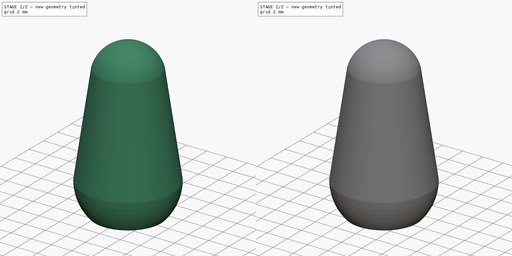
[diagram: build sequence overview — one tinted view per stage of 2, left to right]
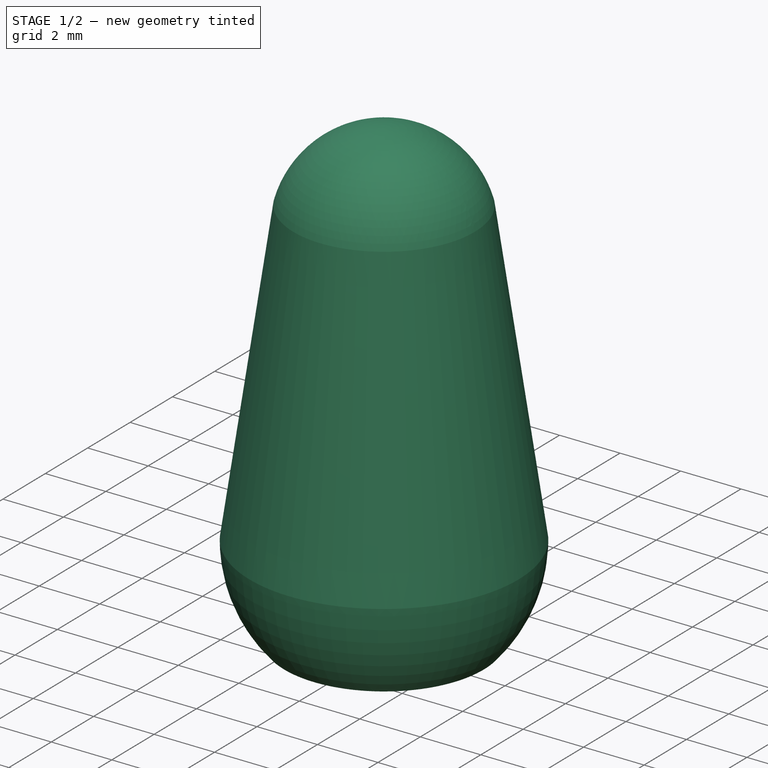
[diagram: stage 1 of 2 — iso view after this stage's code; geometry added in this stage tinted green]
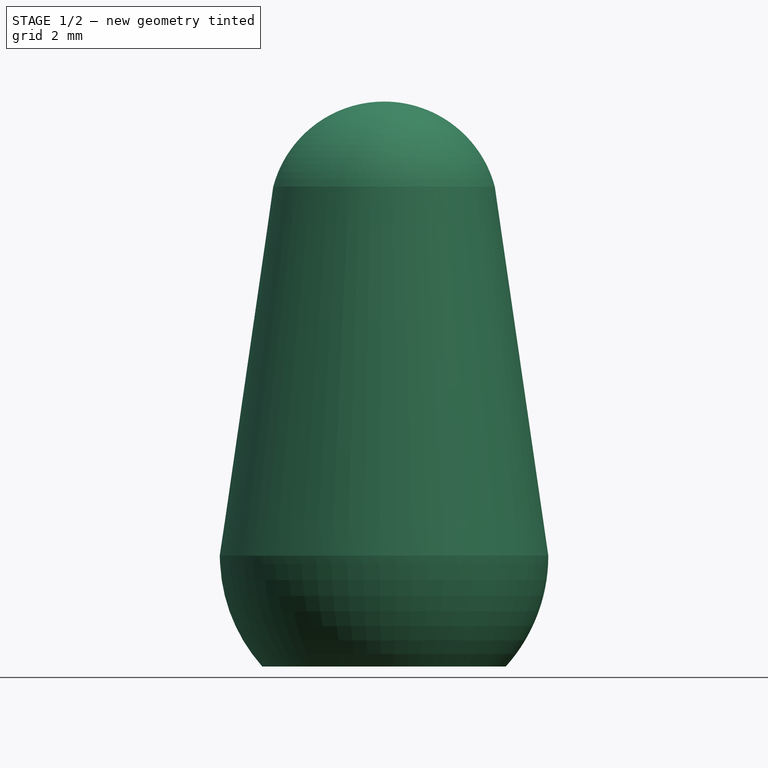
[diagram: stage 1 of 2 — front view after this stage's code; geometry added in this stage tinted green]
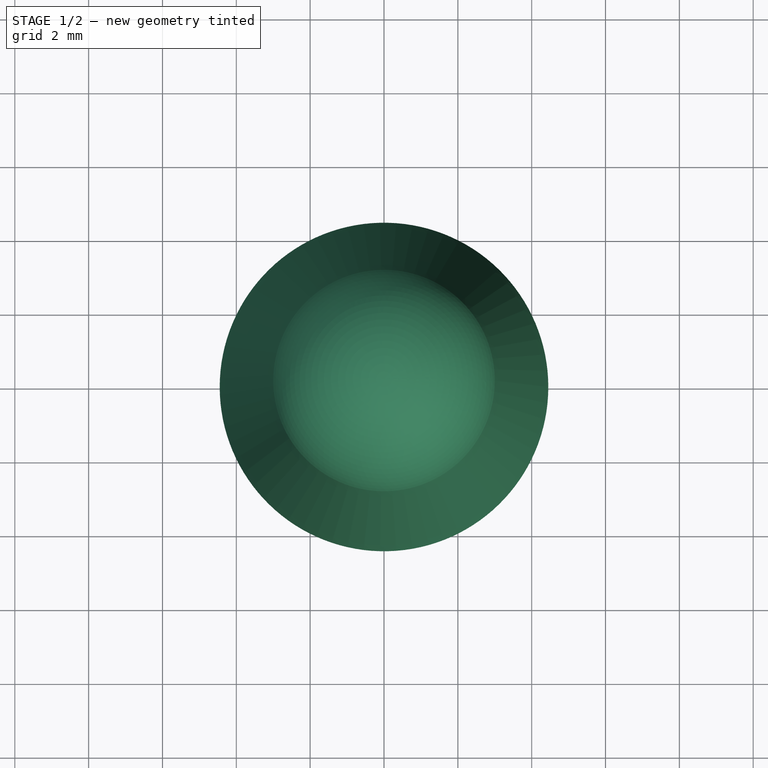
[diagram: stage 1 of 2 — top view after this stage's code; geometry added in this stage tinted green]
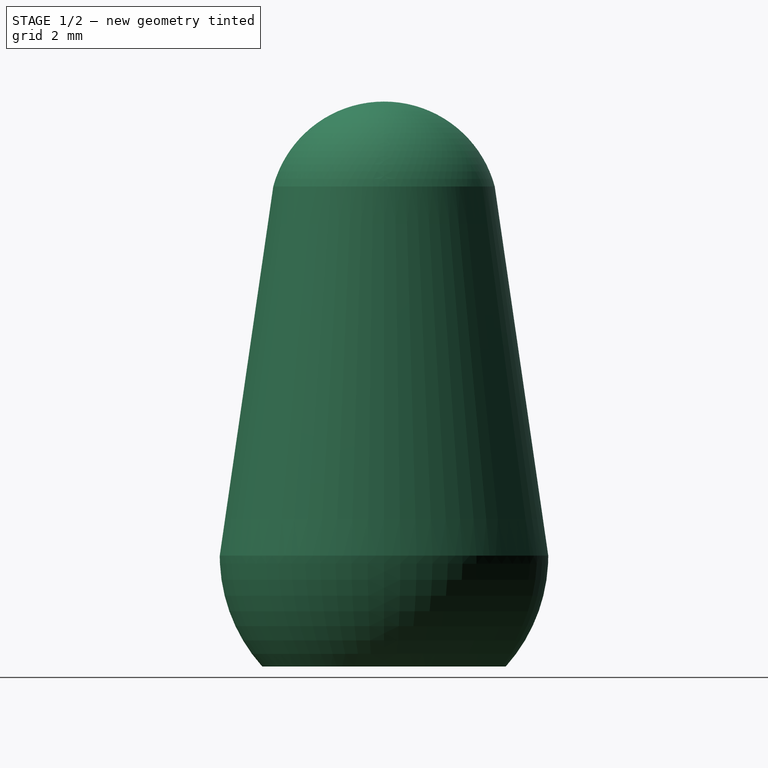
[diagram: stage 1 of 2 — right view after this stage's code; geometry added in this stage tinted green]
FCSTD DOCUMENT  (FreeCAD 0.19R24267 +99 (Git))
Label: tip
License: All rights reserved
LicenseURL: http://en.wikipedia.org/wiki/All_rights_reserved
objects: Sketcher::SketchObject×3, PartDesign::Pocket×2, PartDesign::Revolution×1, PartDesign::Body×1
note: 10 computed .brp shape members not serialized (recipe doc carries the construction recipe); baked Part::Feature solids carry a one-line shape summary decoded from their .brp

FEATURE [Sketcher::SketchObject] Sketch
  FullyConstrained = true
  MapMode = 5
  Placement = pos=(0,0,0) rot=(1,0,0;1.5708rad)
  Support = -> [XZ_Plane]
  sketch-geometry (8):
    g0: LineSegment StartX=-3.3 StartY=0 StartZ=0 EndX=3.3 EndY=-9e-16 EndZ=0
    g1: LineSegment StartX=-4.45 StartY=3 StartZ=0 EndX=4.45 EndY=3 EndZ=0
    g2: LineSegment StartX=0 StartY=0 StartZ=0 EndX=3.3 EndY=-9e-16 EndZ=0
    g3: ArcOfCircle CenterX=-0.0380435 CenterY=3 CenterZ=0 NormalX=0 NormalY=0 NormalZ=1 AngleXU=0 Radius=4.48804 StartAngle=5.55107 EndAngle=6.28319
    g4: LineSegment StartX=4.45 StartY=3 StartZ=0 EndX=3 EndY=13 EndZ=0
    g5: LineSegment StartX=-3 StartY=13 StartZ=0 EndX=3 EndY=13 EndZ=0
    g6: ArcOfCircle CenterX=0 CenterY=12.1935 CenterZ=0 NormalX=0 NormalY=0 NormalZ=1 AngleXU=0 Radius=3.10652 StartAngle=0.262631 EndAngle=1.5708
    g7: LineSegment StartX=2e-16 StartY=15.3 StartZ=0 EndX=0 EndY=0 EndZ=0
  constraints (22):
    c: PointOnObject(g0,g-1)
    c: Symmetric(g1,g1,g-2)
    c: Symmetric(g0,g0,g-2)
    c: Coincident(g2,g-1)
    c: Coincident(g2,g0)
    c: Coincident(g3,g2)
    c: Coincident(g1,g3)
    c: Horizontal(g3,g3)
    c: Coincident(g4,g3)
    c: Symmetric(g5,g5,g-2)
    c: Coincident(g4,g5)
    c: Coincident(g6,g4)
    c: PointOnObject(g6,g-2)
    c: DistanceX(g1,g1) = 8.9
    c: PointOnObject(g6,g-2)
    c: DistanceX(g0,g0) = 6.6
    c: DistanceY(g3,g4) = 10
    c: DistanceY(g2,g3) = 3
    c: DistanceX(g5,g5) = 6
    c: DistanceY(g4,g6) = 2.3
    c: Coincident(g7,g6)
    c: Coincident(g7,g2)
FEATURE [PartDesign::Revolution] Revolution
  Angle = 360
  Axis = (0,2e-16,1)
  Base = (0,0,0)
  Placement = pos=(0,0,0) rot=(1,0,0;1.5708rad)
  Profile = -> Sketch
  ReferenceAxis = -> Sketch [V_Axis]
  Refine = true
  Reversed = true
FEATURE [Sketcher::SketchObject] Sketch001
  FullyConstrained = true
  MapMode = 5
  Support = -> [XY_Plane]
  sketch-geometry (4):
    g0: LineSegment StartX=-2.45 StartY=0.725 StartZ=0 EndX=2.45 EndY=0.725 EndZ=0
    g1: LineSegment StartX=2.45 StartY=0.725 StartZ=0 EndX=2.45 EndY=-0.725 EndZ=0
    g2: LineSegment StartX=2.45 StartY=-0.725 StartZ=0 EndX=-2.45 EndY=-0.725 EndZ=0
    g3: LineSegment StartX=-2.45 StartY=-0.725 StartZ=0 EndX=-2.45 EndY=0.725 EndZ=0
  constraints (11):
    c: Coincident(g0,g1)
    c: Coincident(g1,g2)
    c: Coincident(g2,g3)
    c: Coincident(g3,g0)
    c: Horizontal(g0)
    c: Horizontal(g2)
    c: Vertical(g1)
    c: Vertical(g3)
    c: Symmetric(g0,g2,g-1)
    c: DistanceX(g0,g0) = 4.9
    c: DistanceY(g1,g1) = 1.45
FEATURE [PartDesign::Pocket] Pocket
  BaseFeature = -> Revolution
  Length = 11
  Length2 = 100
  Placement = pos=(0,0,0) rot=(1,0,0;1.5708rad)
  Profile = -> Sketch001
  Refine = true
  Reversed = true
  Type = 0
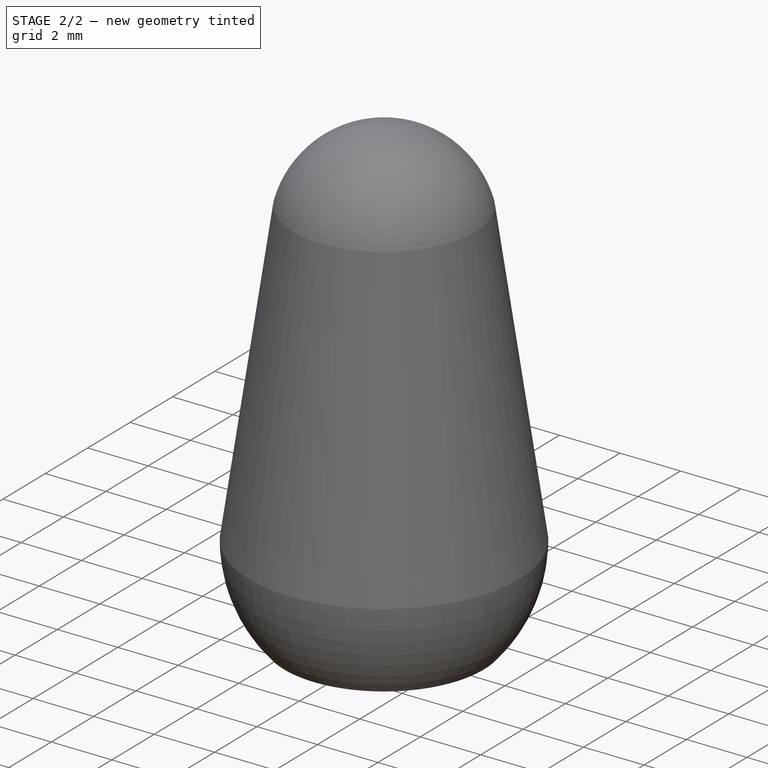
[diagram: stage 2 of 2 — iso view after this stage's code; geometry added in this stage tinted green]
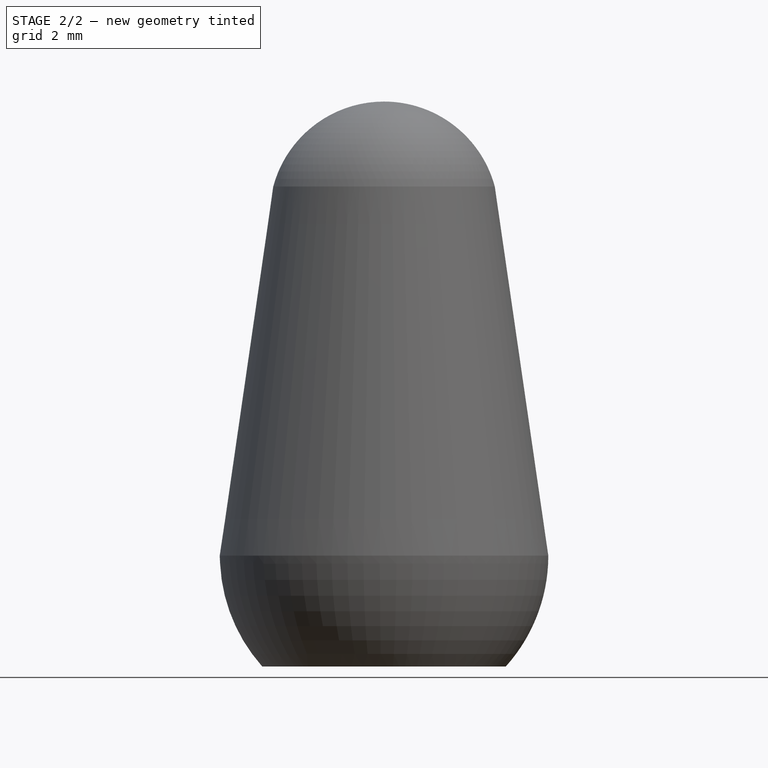
[diagram: stage 2 of 2 — front view after this stage's code; geometry added in this stage tinted green]
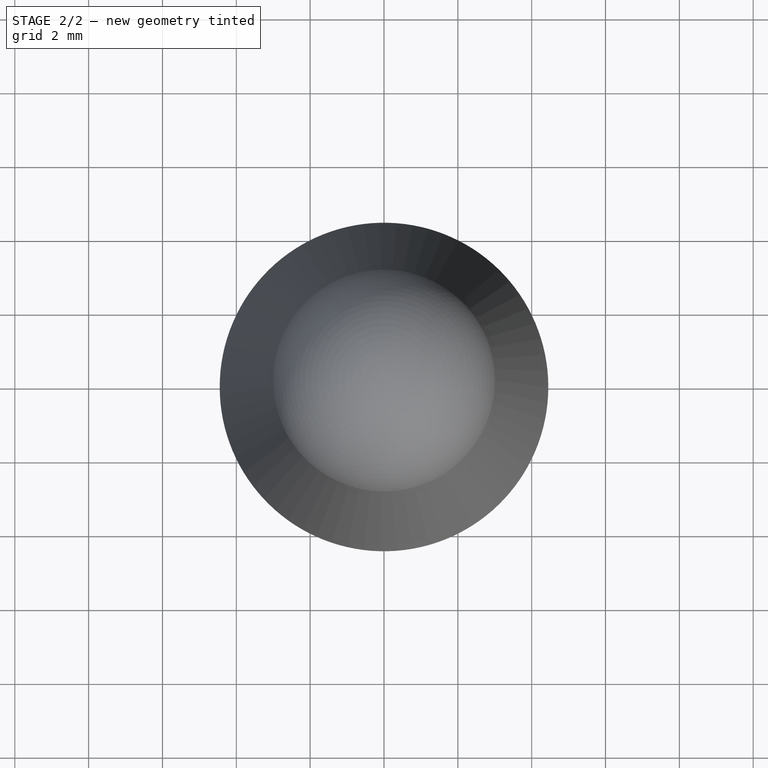
[diagram: stage 2 of 2 — top view after this stage's code; geometry added in this stage tinted green]
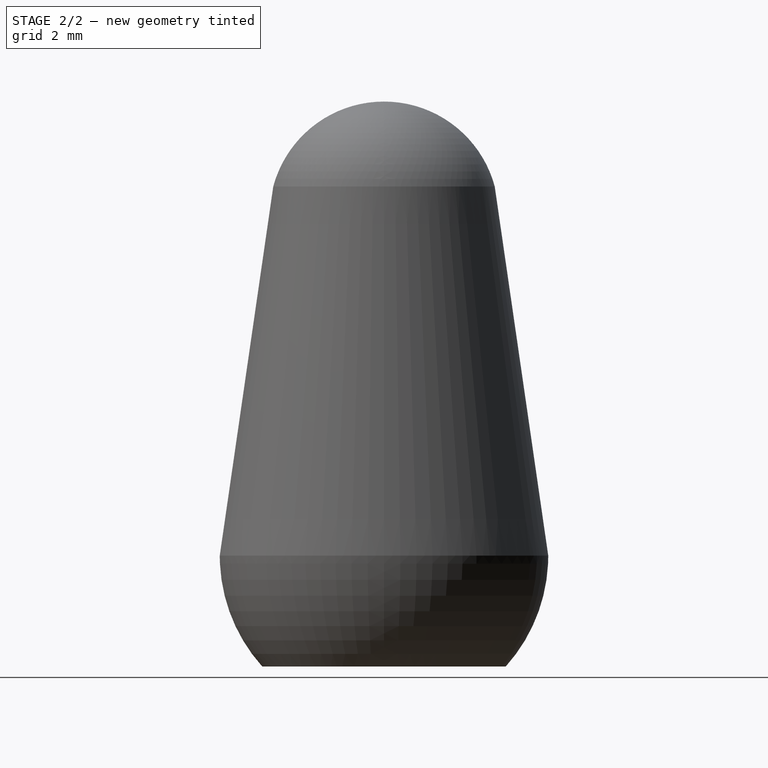
[diagram: stage 2 of 2 — right view after this stage's code; geometry added in this stage tinted green]
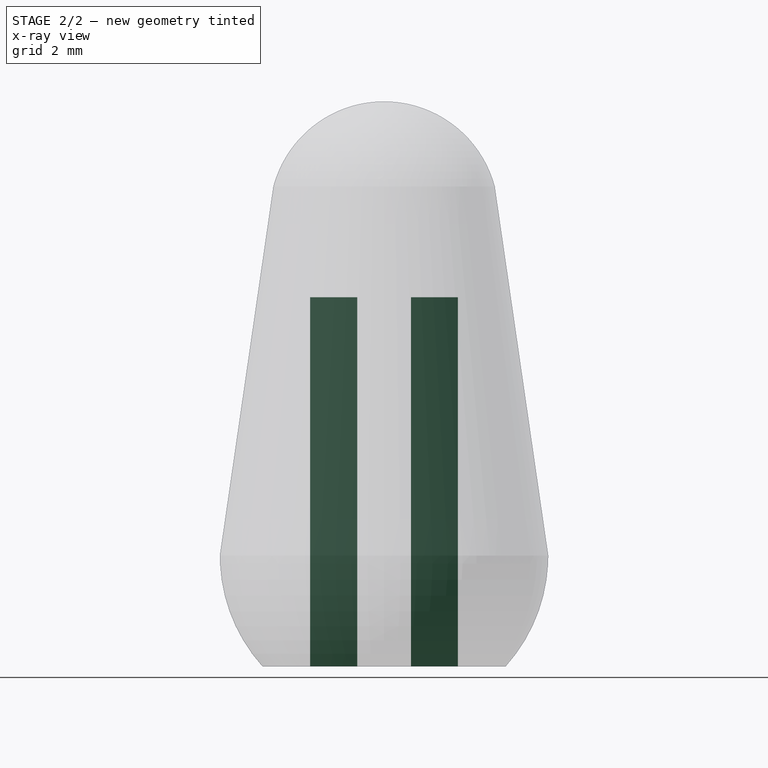
[diagram: stage 2 of 2 — x-ray composite at the right view; earlier geometry ghosted, this stage's added geometry solid]
FEATURE [Sketcher::SketchObject] Sketch002
  FullyConstrained = true
  MapMode = 5
  Support = -> [XY_Plane]
  sketch-geometry (4):
    g0: LineSegment StartX=-0.5 StartY=2 StartZ=0 EndX=0.5 EndY=2 EndZ=0
    g1: LineSegment StartX=0.5 StartY=2 StartZ=0 EndX=0.5 EndY=-2 EndZ=0
    g2: LineSegment StartX=0.5 StartY=-2 StartZ=0 EndX=-0.5 EndY=-2 EndZ=0
    g3: LineSegment StartX=-0.5 StartY=-2 StartZ=0 EndX=-0.5 EndY=2 EndZ=0
  constraints (11):
    c: Coincident(g0,g1)
    c: Coincident(g1,g2)
    c: Coincident(g2,g3)
    c: Coincident(g3,g0)
    c: Horizontal(g0)
    c: Horizontal(g2)
    c: Vertical(g1)
    c: Vertical(g3)
    c: Symmetric(g0,g1,g-1)
    c: DistanceX(g0,g0) = 1
    c: DistanceY(g1,g1) = 4
FEATURE [PartDesign::Pocket] Pocket001
  BaseFeature = -> Pocket
  Length = 10
  Length2 = 100
  Placement = pos=(0,0,0) rot=(1,0,0;1.5708rad)
  Profile = -> Sketch002
  Refine = true
  Reversed = true
  Type = 0
FEATURE [PartDesign::Body] Body
  Group = -> [Sketch,Revolution,Sketch001,Pocket,Sketch002,Pocket001]
  Origin = -> Origin
  Tip = -> Pocket001
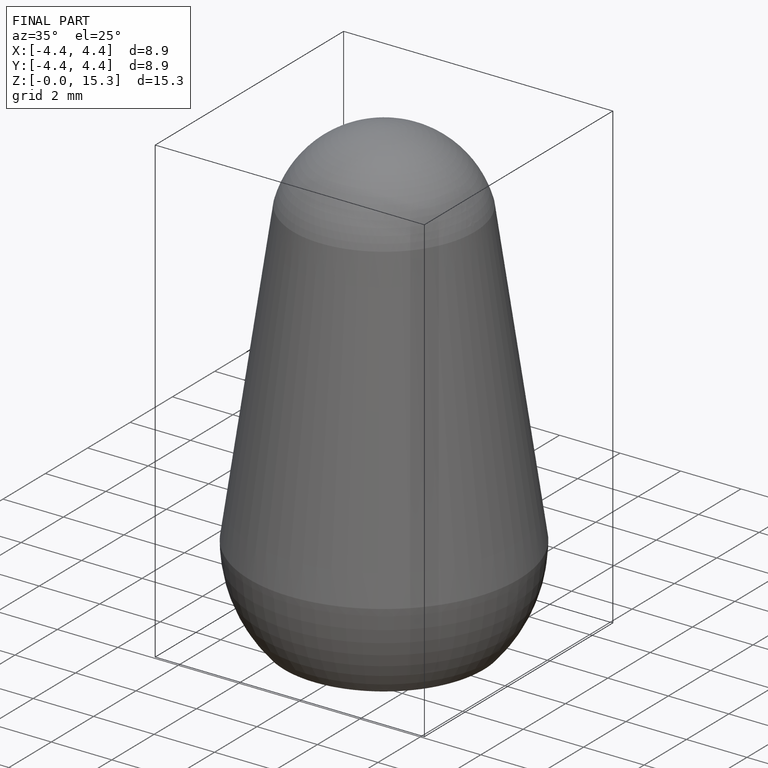
[diagram: finished part — iso view with bounding-box wireframe]
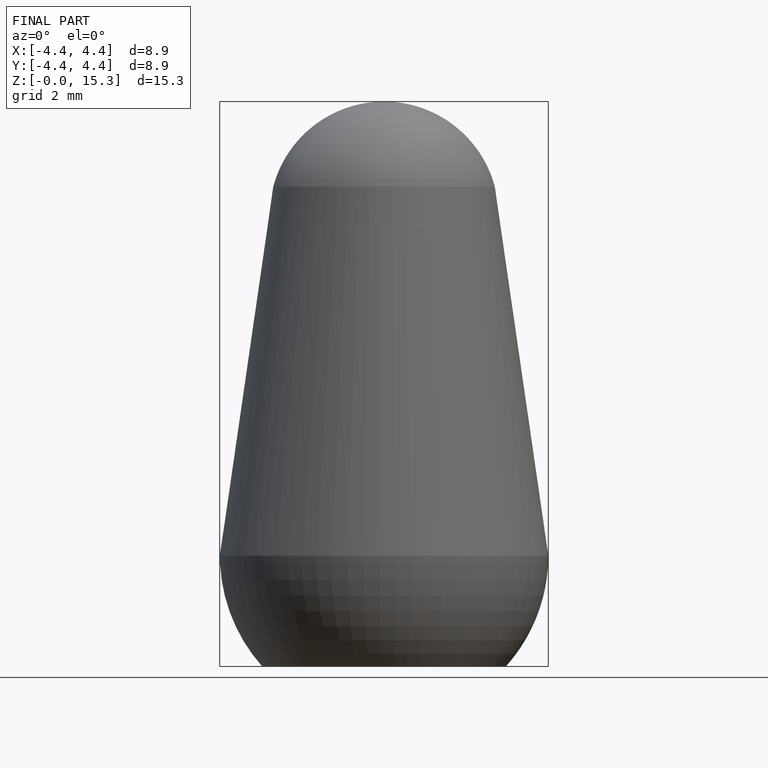
[diagram: finished part — front view with bounding-box wireframe]
